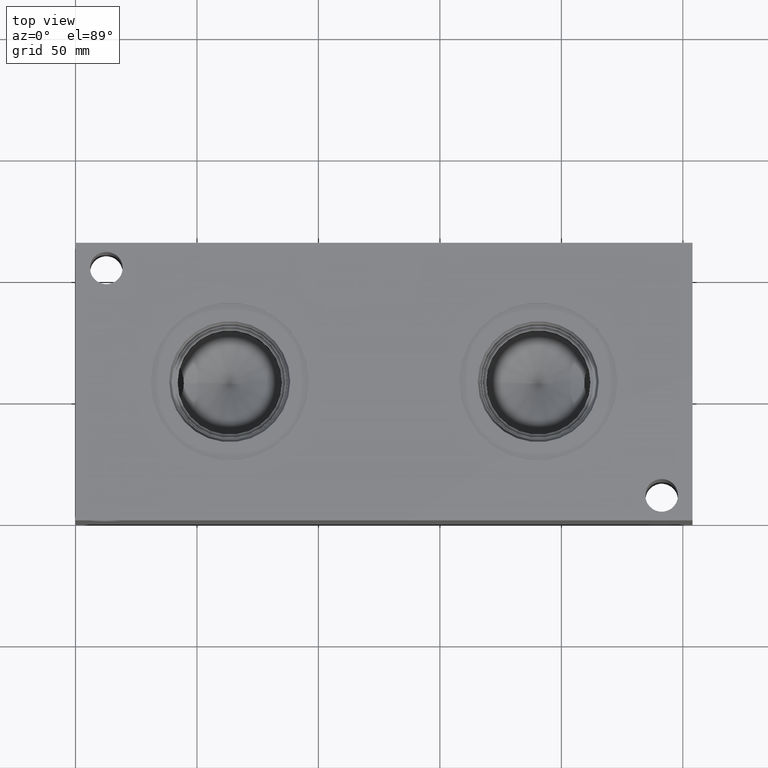
[diagram: clean part render]
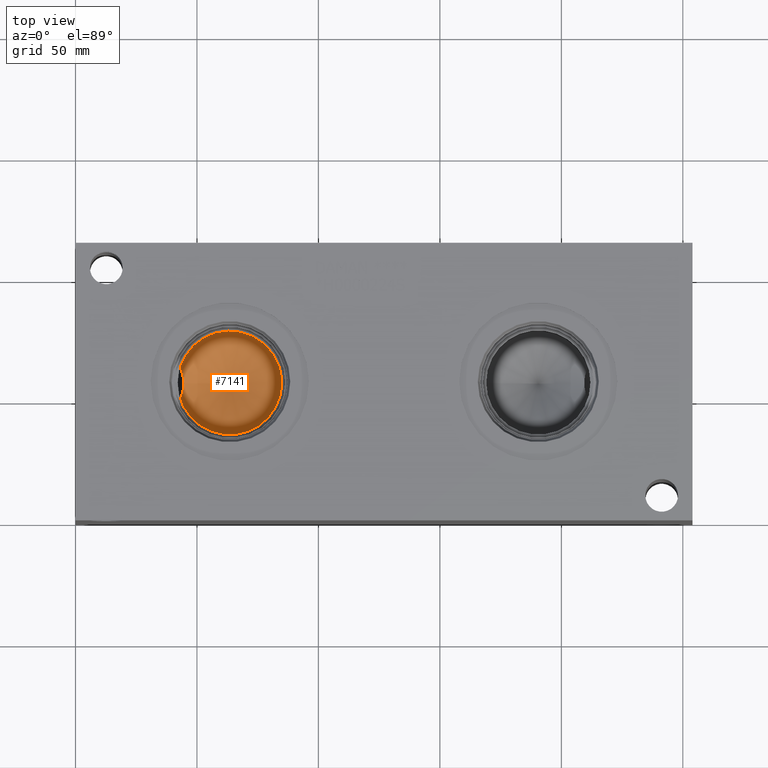
[diagram: same view with one face highlighted and labeled with its STEP entity id]
A machine part, top view. The second image highlights one B-rep face of the part: STEP entity #7141.
In plain terms, the highlighted conical surface has half-angle 60 deg.
Its self-contained STEP definition (entity closure, byte-faithful):
#18=CONICAL_SURFACE('',#7466,10.7188,1.0471975511966);
#100=CIRCLE('',#7465,21.4376);
#396=B_SPLINE_CURVE_WITH_KNOTS('',3,(#12079,#12080,#12081,#12082,#12083,
#12084,#12085,#12086),.UNSPECIFIED.,.F.,.F.,(4,2,2,4),(2.20532434777312,
2.2142890775038,2.58333725708777,2.95238543667174),.UNSPECIFIED.);
#397=B_SPLINE_CURVE_WITH_KNOTS('',3,(#12087,#12088,#12089,#12090,#12091,
#12092,#12093,#12094),.UNSPECIFIED.,.F.,.F.,(4,2,2,4),(2.95238543667174,
3.3214336162557,3.69048179583967,3.69944652557035),.UNSPECIFIED.);
#816=FACE_OUTER_BOUND('',#1211,.T.);
#1211=EDGE_LOOP('',(#6093,#6094,#6095,#6096,#6097));
#1930=LINE('',#12096,#2629);
#2629=VECTOR('',#8773,10.7188);
#3262=VERTEX_POINT('',#12058);
#3263=VERTEX_POINT('',#12067);
#3264=VERTEX_POINT('',#12078);
#3265=VERTEX_POINT('',#12095);
#4224=EDGE_CURVE('',#3263,#3262,#100,.T.);
#4226=EDGE_CURVE('',#3263,#3264,#396,.T.);
#4227=EDGE_CURVE('',#3264,#3262,#397,.T.);
#4228=EDGE_CURVE('',#3264,#3265,#1930,.T.);
#6093=ORIENTED_EDGE('',*,*,#4226,.F.);
#6094=ORIENTED_EDGE('',*,*,#4224,.T.);
#6095=ORIENTED_EDGE('',*,*,#4227,.F.);
#6096=ORIENTED_EDGE('',*,*,#4228,.T.);
#6097=ORIENTED_EDGE('',*,*,#4228,.F.);
#7141=ADVANCED_FACE('',(#816),#18,.F.);
#7465=AXIS2_PLACEMENT_3D('',#12068,#8769,#8770);
#7466=AXIS2_PLACEMENT_3D('',#12077,#8771,#8772);
#8769=DIRECTION('center_axis',(0.,0.,1.));
#8770=DIRECTION('ref_axis',(1.,0.,0.));
#8771=DIRECTION('center_axis',(0.,0.,1.));
#8772=DIRECTION('ref_axis',(1.,0.,0.));
#8773=DIRECTION('',(0.866025403784439,1.06057523872491E-16,-0.5));
#12058=CARTESIAN_POINT('',(43.1230789915118,63.8097135053868,77.52383));
#12067=CARTESIAN_POINT('',(43.1230789915118,50.4902864946132,77.52383));
#12068=CARTESIAN_POINT('Origin',(63.5,57.15,77.52383));
#12077=CARTESIAN_POINT('Origin',(63.5,57.15,71.3353279346102));
#12078=CARTESIAN_POINT('',(44.5721259037392,57.15,76.074839073884));
#12079=CARTESIAN_POINT('Ctrl Pts',(43.1230789915118,50.4902864946132,77.52383));
#12080=CARTESIAN_POINT('Ctrl Pts',(43.1329073302326,50.5150101116654,77.5140020027376));
#12081=CARTESIAN_POINT('Ctrl Pts',(43.1427026655932,50.5397453652633,77.5042070083898));
#12082=CARTESIAN_POINT('Ctrl Pts',(43.5543502037768,51.5832362267404,77.0925738303686));
#12083=CARTESIAN_POINT('Ctrl Pts',(43.9012303038941,52.6183100625887,76.7457070773159));
#12084=CARTESIAN_POINT('Ctrl Pts',(44.4101797635539,54.7865827420877,76.2367781422611));
#12085=CARTESIAN_POINT('Ctrl Pts',(44.5721259037392,55.9198394013868,76.074839073884));
#12086=CARTESIAN_POINT('Ctrl Pts',(44.5721259037392,57.15,76.074839073884));
#12087=CARTESIAN_POINT('Ctrl Pts',(44.5721259037392,57.15,76.074839073884));
#12088=CARTESIAN_POINT('Ctrl Pts',(44.5721259037392,58.3801605986132,76.074839073884));
#12089=CARTESIAN_POINT('Ctrl Pts',(44.4101797635539,59.5134172579123,76.2367781422611));
#12090=CARTESIAN_POINT('Ctrl Pts',(43.9012303038941,61.6816899374113,76.7457070773159));
#12091=CARTESIAN_POINT('Ctrl Pts',(43.5543502037768,62.7167637732596,77.0925738303686));
#12092=CARTESIAN_POINT('Ctrl Pts',(43.1427026655932,63.7602546347367,77.5042070083898));
#12093=CARTESIAN_POINT('Ctrl Pts',(43.1329073302326,63.7849898883346,77.5140020027376));
#12094=CARTESIAN_POINT('Ctrl Pts',(43.1230789915118,63.8097135053868,77.52383));
#12095=CARTESIAN_POINT('',(63.5,57.15,65.1468258692205));
#12096=CARTESIAN_POINT('',(52.7812,57.15,71.3353279346102));